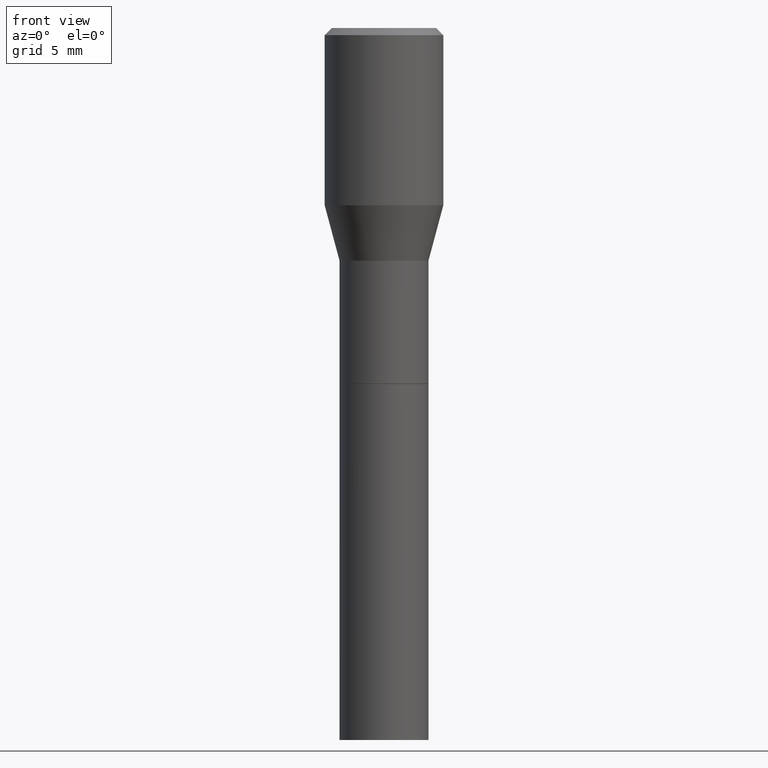
[diagram: clean part render]
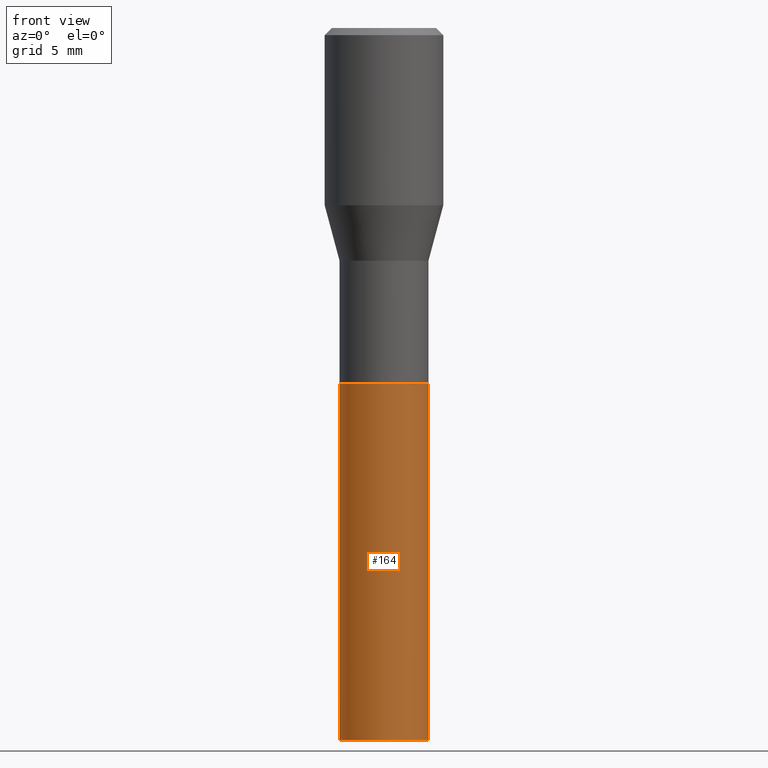
[diagram: same view with one face highlighted and labeled with its STEP entity id]
A machine part, front view. The second image highlights one B-rep face of the part: STEP entity #164.
In plain terms, the highlighted cylindrical surface (partial cylindrical patch) has radius 2.3813 mm, axis along (-0, 0, 1).
Its self-contained STEP definition (entity closure, byte-faithful):
#15 = DIRECTION ( 'NONE',  ( -2.445468806185136877E-29, 3.491481338843145188E-15, 1.000000000000000000 ) ) ;
#19 = VERTEX_POINT ( 'NONE', #126 ) ;
#73 = VERTEX_POINT ( 'NONE', #434 ) ;
#75 = CARTESIAN_POINT ( 'NONE',  ( 0.09375000000000001388, -5.891874759297805681E-15, -1.500000000000000222 ) ) ;
#76 = EDGE_LOOP ( 'NONE', ( #422, #240, #117, #105 ) ) ;
#79 = CARTESIAN_POINT ( 'NONE',  ( 0.09375000000000001388, -6.546527510330875041E-16, 4.571415727308690506E-30 ) ) ;
#80 = AXIS2_PLACEMENT_3D ( 'NONE', #238, #258, #129 ) ;
#102 = EDGE_CURVE ( 'NONE', #364, #73, #448, .T. ) ;
#105 = ORIENTED_EDGE ( 'NONE', *, *, #102, .F. ) ;
#111 = LINE ( 'NONE', #79, #247 ) ;
#117 = ORIENTED_EDGE ( 'NONE', *, *, #444, .T. ) ;
#126 = CARTESIAN_POINT ( 'NONE',  ( -0.09375000000000001388, -3.261782691423444906E-15, -1.500000000000000222 ) ) ;
#129 = DIRECTION ( 'NONE',  ( 1.000000000000000000, -6.982962677686266711E-15, 0.000000000000000000 ) ) ;
#138 = CARTESIAN_POINT ( 'NONE',  ( 0.000000000000000000, 0.000000000000000000, 0.000000000000000000 ) ) ;
#149 = AXIS2_PLACEMENT_3D ( 'NONE', #138, #382, #218 ) ;
#164 = ADVANCED_FACE ( 'NONE', ( #290 ), #179, .T. ) ;
#179 = CYLINDRICAL_SURFACE ( 'NONE', #149, 0.09375000000000001388 ) ;
#184 = CARTESIAN_POINT ( 'NONE',  ( -0.09375000000000001388, -3.261782691423444906E-15, -0.7500000000000001110 ) ) ;
#218 = DIRECTION ( 'NONE',  ( 1.000000000000000000, -6.982962677686265922E-15, 4.876176775795935793E-29 ) ) ;
#225 = CARTESIAN_POINT ( 'NONE',  ( 3.668203209277704895E-29, -5.237222008264718177E-15, -1.500000000000000222 ) ) ;
#238 = CARTESIAN_POINT ( 'NONE',  ( 1.834101604638852448E-29, -2.618611004132359088E-15, -0.7500000000000001110 ) ) ;
#240 = ORIENTED_EDGE ( 'NONE', *, *, #414, .T. ) ;
#247 = VECTOR ( 'NONE', #367, 39.37007874015748143 ) ;
#258 = DIRECTION ( 'NONE',  ( -2.445468806185136597E-29, 3.491481338843145583E-15, 1.000000000000000000 ) ) ;
#290 = FACE_OUTER_BOUND ( 'NONE', #76, .T. ) ;
#296 = CARTESIAN_POINT ( 'NONE',  ( -0.09375000000000001388, 6.661338147750940229E-16, -4.611501647113973995E-30 ) ) ;
#307 = EDGE_CURVE ( 'NONE', #19, #364, #402, .T. ) ;
#311 = VECTOR ( 'NONE', #15, 39.37007874015748143 ) ;
#318 = CIRCLE ( 'NONE', #394, 0.09375000000000001388 ) ;
#364 = VERTEX_POINT ( 'NONE', #184 ) ;
#365 = DIRECTION ( 'NONE',  ( -2.445468806185136597E-29, 3.491481338843145583E-15, 1.000000000000000000 ) ) ;
#367 = DIRECTION ( 'NONE',  ( -2.445468806185136877E-29, 3.491481338843145188E-15, 1.000000000000000000 ) ) ;
#382 = DIRECTION ( 'NONE',  ( -2.445468806185136597E-29, 3.491481338843145583E-15, 1.000000000000000000 ) ) ;
#383 = VERTEX_POINT ( 'NONE', #75 ) ;
#394 = AXIS2_PLACEMENT_3D ( 'NONE', #225, #365, #437 ) ;
#402 = LINE ( 'NONE', #296, #311 ) ;
#414 = EDGE_CURVE ( 'NONE', #19, #383, #318, .T. ) ;
#422 = ORIENTED_EDGE ( 'NONE', *, *, #307, .F. ) ;
#434 = CARTESIAN_POINT ( 'NONE',  ( 0.09375000000000001388, -3.273263755165446987E-15, -0.7500000000000001110 ) ) ;
#437 = DIRECTION ( 'NONE',  ( 1.000000000000000000, -6.982962677686261189E-15, 0.000000000000000000 ) ) ;
#444 = EDGE_CURVE ( 'NONE', #383, #73, #111, .T. ) ;
#448 = CIRCLE ( 'NONE', #80, 0.09375000000000001388 ) ;